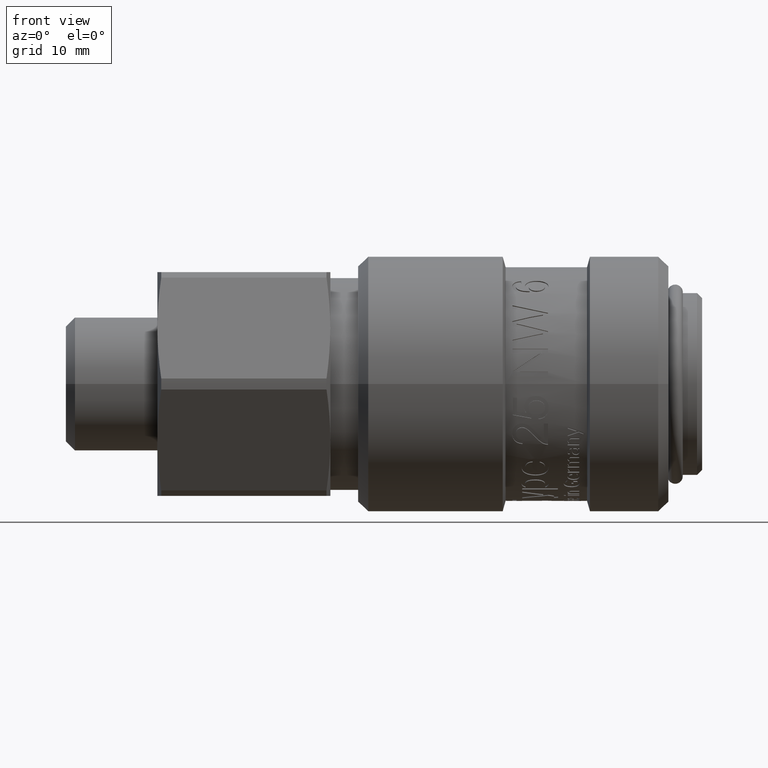
[diagram: clean part render]
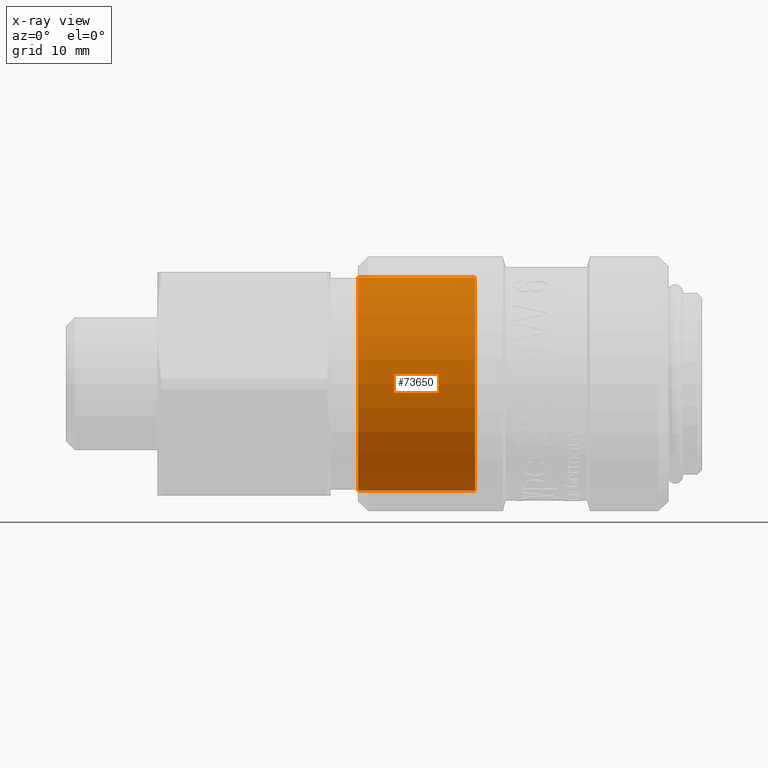
[diagram: x-ray — body ghosted, one internal face saturated and labeled with its STEP entity id]
A machine part, front view, then the same camera in x-ray: the body is ghosted and one INTERNAL B-rep face — a face not visible from any outside direction — is saturated and labeled: STEP entity #73650.
In plain terms, the highlighted cylindrical surface (bore or boss wall) has radius 10.5 mm, axis along (1, 0, 0).
Its self-contained STEP definition (entity closure, byte-faithful):
#73432=CARTESIAN_POINT('',(3.180999999999997,-10.500000000000000,0.0));
#73433=VERTEX_POINT('',#73432);
#73434=CARTESIAN_POINT('',(3.180999999999995,3.895601E-016,0.0));
#73435=DIRECTION('',(1.0,0.0,0.0));
#73436=DIRECTION('',(0.0,-1.0,0.0));
#73437=AXIS2_PLACEMENT_3D('',#73434,#73435,#73436);
#73438=CIRCLE('',#73437,10.500000000000000);
#73439=EDGE_CURVE('',#73433,#73433,#73438,.T.);
#73624=CARTESIAN_POINT('',(14.680999999999997,-10.499999999999998,0.0));
#73625=VERTEX_POINT('',#73624);
#73626=CARTESIAN_POINT('',(14.680999999999997,1.950422E-015,0.0));
#73627=DIRECTION('',(1.0,0.0,0.0));
#73628=DIRECTION('',(0.0,-1.0,0.0));
#73629=AXIS2_PLACEMENT_3D('',#73626,#73627,#73628);
#73630=CIRCLE('',#73629,10.499999999999998);
#73631=EDGE_CURVE('',#73625,#73625,#73630,.T.);
#73639=CARTESIAN_POINT('',(8.930999999999996,1.169991E-015,0.0));
#73640=DIRECTION('',(1.0,1.357271E-016,0.0));
#73641=DIRECTION('',(0.0,-1.0,0.0));
#73642=AXIS2_PLACEMENT_3D('',#73639,#73640,#73641);
#73643=CYLINDRICAL_SURFACE('',#73642,10.500000000000000);
#73644=ORIENTED_EDGE('',*,*,#73439,.F.);
#73645=EDGE_LOOP('',(#73644));
#73646=FACE_OUTER_BOUND('',#73645,.T.);
#73647=ORIENTED_EDGE('',*,*,#73631,.T.);
#73648=EDGE_LOOP('',(#73647));
#73649=FACE_BOUND('',#73648,.T.);
#73650=ADVANCED_FACE('',(#73646,#73649),#73643,.F.);